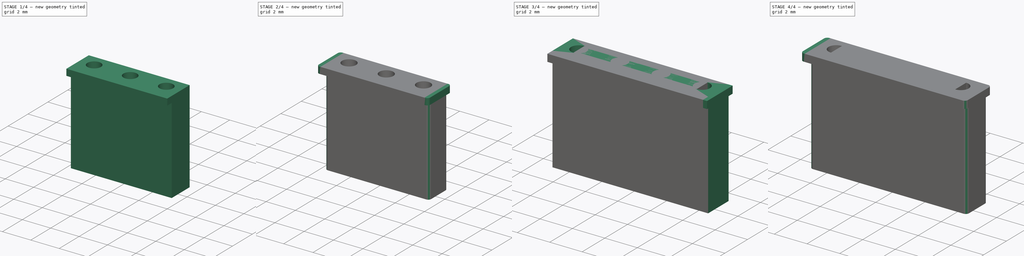
[diagram: build sequence overview — one tinted view per stage of 4, left to right]
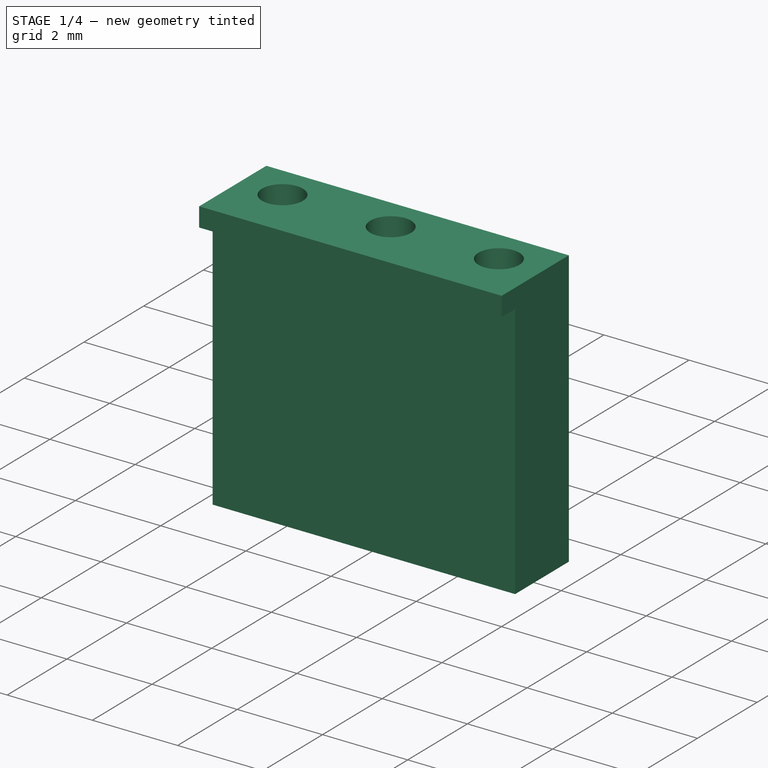
[diagram: stage 1 of 4 — iso view after this stage's code; geometry added in this stage tinted green]
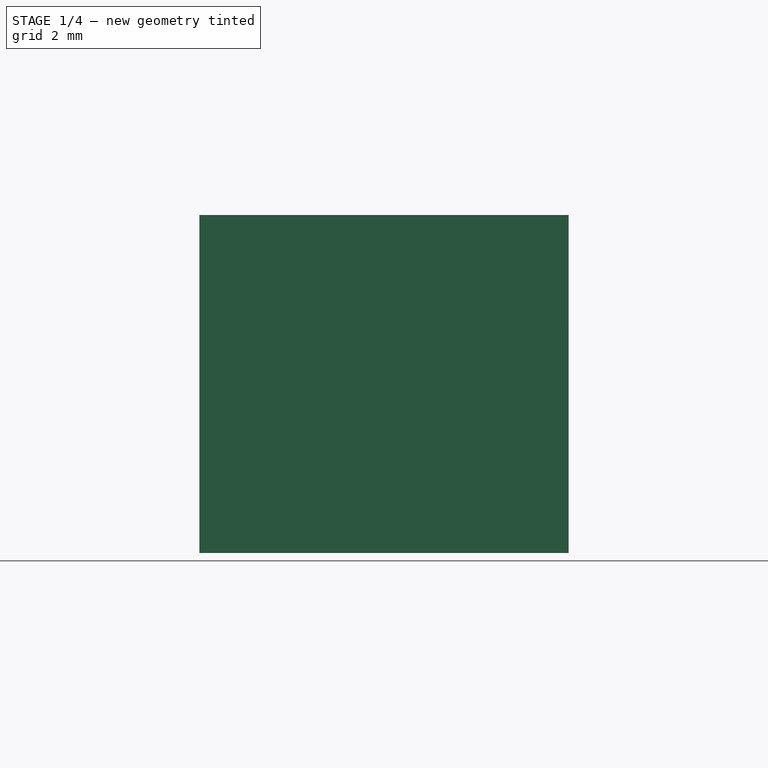
[diagram: stage 1 of 4 — front view after this stage's code; geometry added in this stage tinted green]
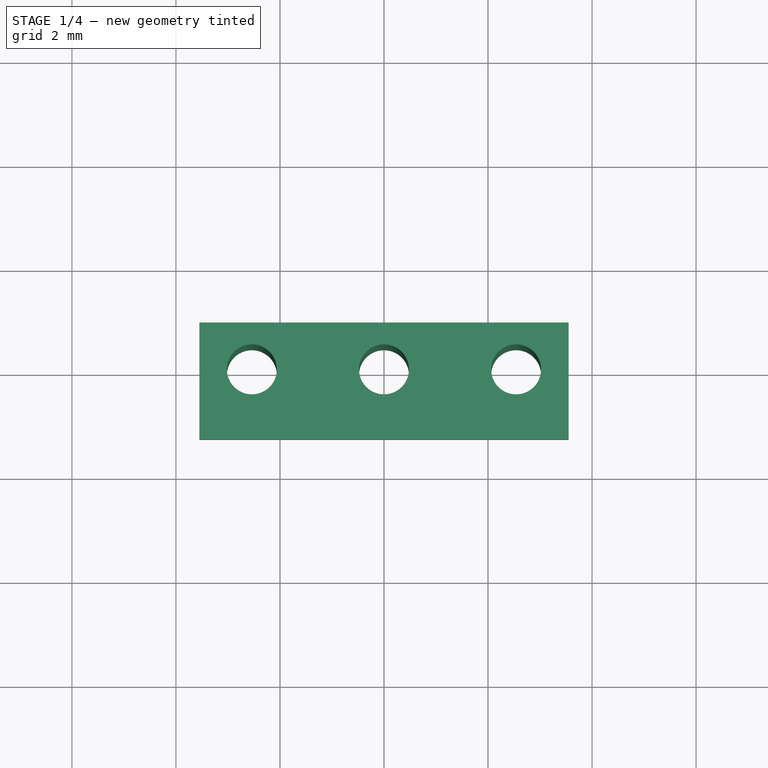
[diagram: stage 1 of 4 — top view after this stage's code; geometry added in this stage tinted green]
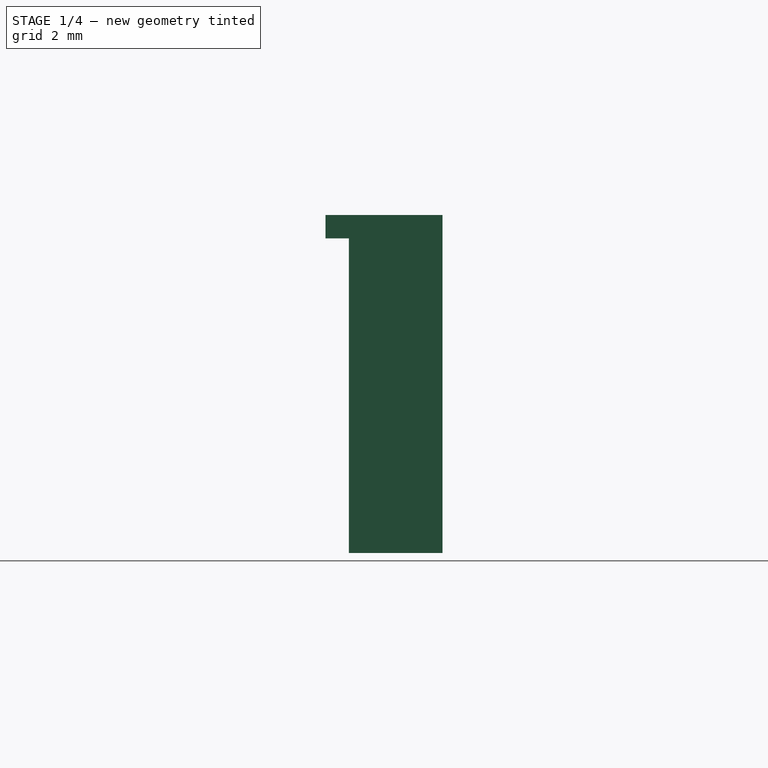
[diagram: stage 1 of 4 — right view after this stage's code; geometry added in this stage tinted green]
FCSTD DOCUMENT  (FreeCAD 1.0R39319 (Git))
Label: MB-C2_CN-CAPs
License: All rights reserved
LicenseURL: https://en.wikipedia.org/wiki/All_rights_reserved
objects: Sketcher::SketchObject×8, PartDesign::Pad×8, PartDesign::Fillet×2, PartDesign::Body×2
note: 48 computed .brp shape members not serialized (recipe doc carries the construction recipe); baked Part::Feature solids carry a one-line shape summary decoded from their .brp

FEATURE [PartDesign::Body] Body  label="CAP2.54pin-1x04_Body"
  AllowCompound = false
  Group = -> [Sketch,Pad,Sketch001,Pad001,Sketch002,Pad002,Sketch003,Pad003,Fillet]
  Origin = -> Origin
  Tip = -> Fillet
FEATURE [Sketcher::SketchObject] Sketch004
  ArcFitTolerance = 1e-06
  AttachmentSupport = -> [XY_Plane001]
  FullyConstrained = true
  MakeInternals = false
  MapMode = 5
  sketch-geometry (8):
    g0: LineSegment StartX=-3.55 StartY=-0.9 StartZ=0 EndX=3.55 EndY=-0.9 EndZ=0
    g1: LineSegment StartX=3.55 StartY=-0.9 StartZ=0 EndX=3.55 EndY=0.9 EndZ=0
    g2: LineSegment StartX=3.55 StartY=0.9 StartZ=0 EndX=-3.55 EndY=0.9 EndZ=0
    g3: LineSegment StartX=-3.55 StartY=0.9 StartZ=0 EndX=-3.55 EndY=-0.9 EndZ=0
    g4: GeomPoint [constr] X=0 Y=0 Z=0
    g5: Circle CenterX=0 CenterY=0 CenterZ=0 NormalX=0 NormalY=0 NormalZ=1 AngleXU=0 Radius=0.48
    g6: Circle CenterX=-2.54 CenterY=0 CenterZ=0 NormalX=0 NormalY=0 NormalZ=1 AngleXU=0 Radius=0.48
    g7: Circle CenterX=2.54 CenterY=0 CenterZ=0 NormalX=0 NormalY=0 NormalZ=1 AngleXU=0 Radius=0.48
  constraints (20):
    c: Coincident(g0,g1)
    c: Coincident(g1,g2)
    c: Coincident(g2,g3)
    c: Coincident(g3,g0)
    c: Horizontal(g0)
    c: Horizontal(g2)
    c: Vertical(g1)
    c: Vertical(g3)
    c: Symmetric(g2,g0,g4)
    c: Distance(g1,g3) = 7.1
    c: Distance(g0,g2) = 1.8
    c: Coincident(g4,g-1)
    c: Diameter(g5) = 0.96
    c: Coincident(g5,g4)
    c: Diameter(g6) = 0.96
    c: PointOnObject(g6,g-1)
    c: Diameter(g7) = 0.96
    c: PointOnObject(g7,g-1)
    c: DistanceX(g4,g7) = 2.54
    c: DistanceX(g6,g4) = 2.54
FEATURE [PartDesign::Pad] Pad004
  Direction = (0,0,1)
  Length = 6.5
  Length2 = 10
  Profile = -> Sketch004
  ReferenceAxis = -> Sketch004 [N_Axis]
  Suppressed = false
  Type = 0
FEATURE [Sketcher::SketchObject] Sketch005
  ArcFitTolerance = 1e-06
  AttachmentSupport = -> [Pad004]
  ExternalGeometry = -> [Pad004]
  FullyConstrained = true
  MakeInternals = false
  MapMode = 5
  Placement = pos=(0,-0.9,0) rot=(1,0,0;1.5708rad)
  sketch-geometry (5):
    g0: GeomPoint [constr] X=3.55 Y=6.05 Z=0
    g1: LineSegment StartX=-3.55 StartY=6.5 StartZ=0 EndX=-3.55 EndY=6.05 EndZ=0
    g2: LineSegment StartX=-3.55 StartY=6.05 StartZ=0 EndX=3.55 EndY=6.05 EndZ=0
    g3: LineSegment StartX=3.55 StartY=6.05 StartZ=0 EndX=3.55 EndY=6.5 EndZ=0
    g4: LineSegment StartX=3.55 StartY=6.5 StartZ=0 EndX=-3.55 EndY=6.5 EndZ=0
  constraints (12):
    c: PointOnObject(g0,g-4)
    c: DistanceY(g0,g-4) = 0.45
    c: Coincident(g1,g2)
    c: Coincident(g2,g3)
    c: Coincident(g3,g4)
    c: Coincident(g4,g1)
    c: Vertical(g1)
    c: Vertical(g3)
    c: Horizontal(g2)
    c: Horizontal(g4)
    c: Coincident(g1,g-3)
    c: Coincident(g2,g0)
FEATURE [PartDesign::Pad] Pad005
  BaseFeature = -> Pad004
  Direction = (0,-1,2e-16)
  Length = 0.45
  Length2 = 10
  Profile = -> Sketch005
  ReferenceAxis = -> Sketch005 [N_Axis]
  Suppressed = false
  Type = 0
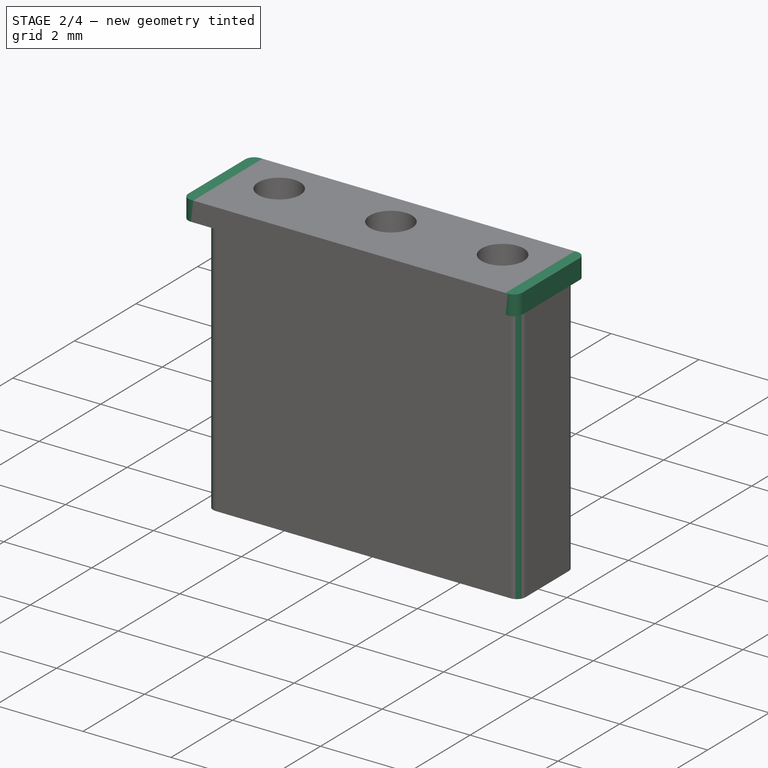
[diagram: stage 2 of 4 — iso view after this stage's code; geometry added in this stage tinted green]
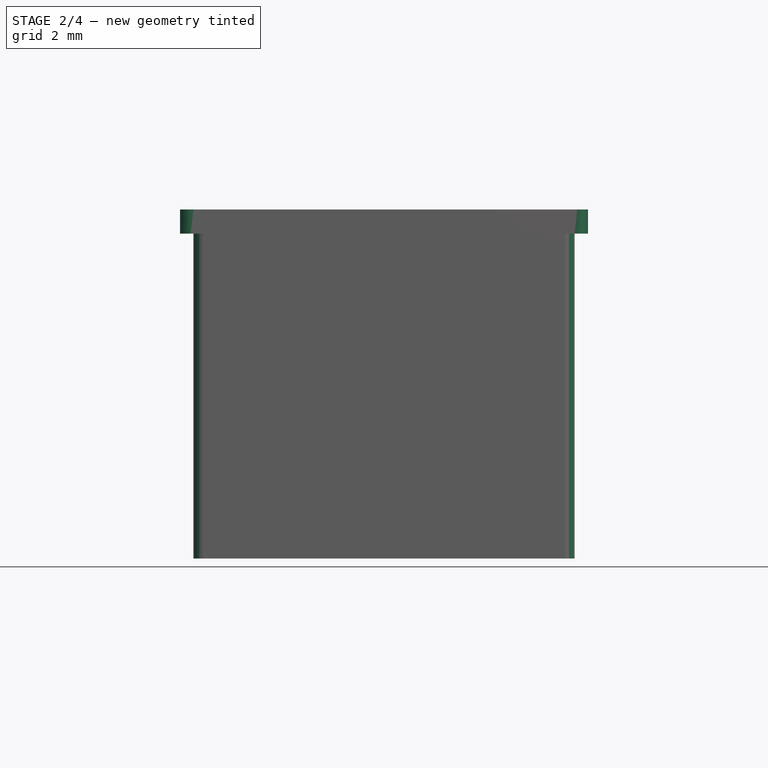
[diagram: stage 2 of 4 — front view after this stage's code; geometry added in this stage tinted green]
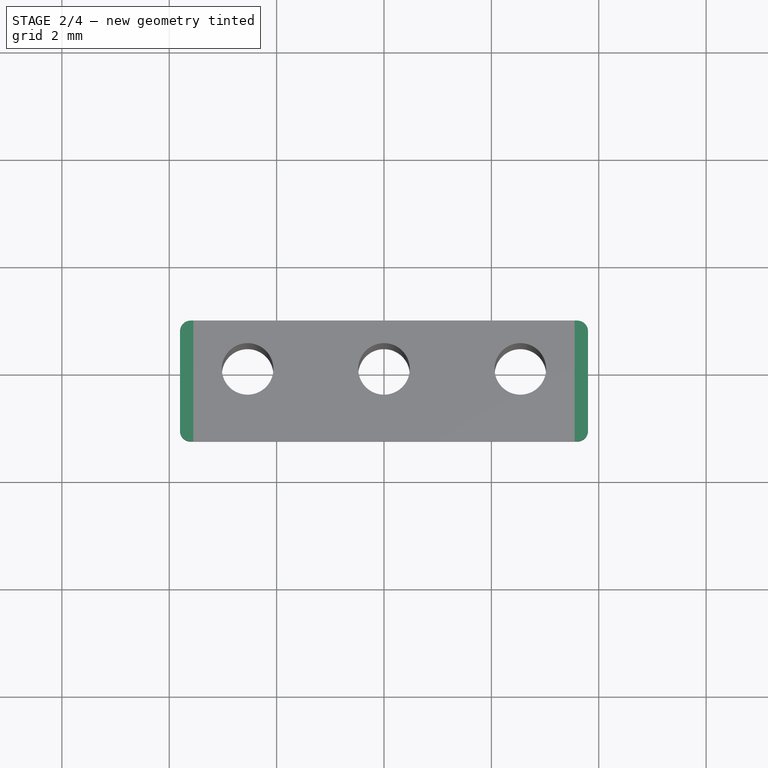
[diagram: stage 2 of 4 — top view after this stage's code; geometry added in this stage tinted green]
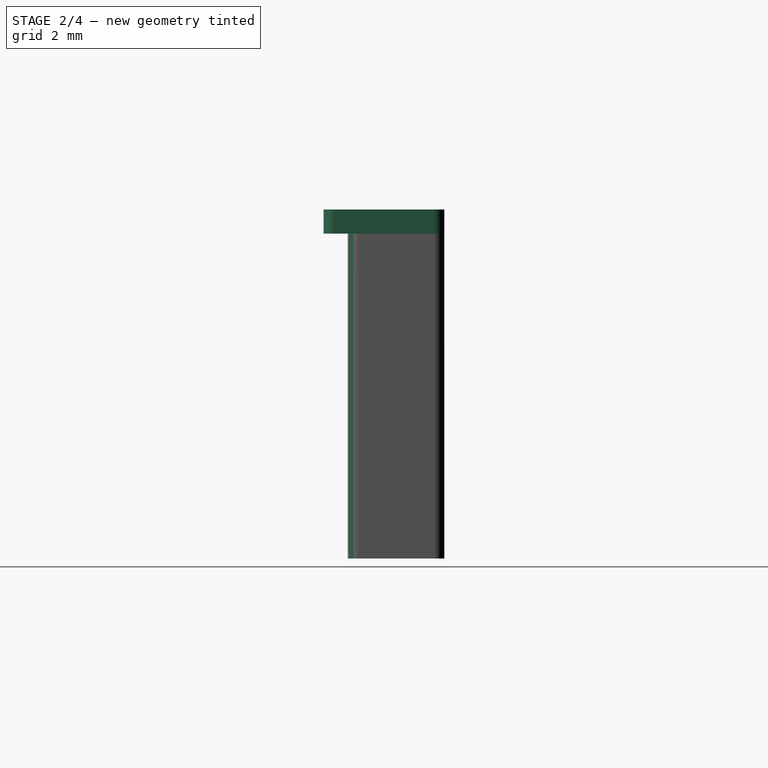
[diagram: stage 2 of 4 — right view after this stage's code; geometry added in this stage tinted green]
FEATURE [Sketcher::SketchObject] Sketch006
  ArcFitTolerance = 1e-06
  AttachmentSupport = -> [Pad005]
  ExternalGeometry = -> [Pad005]
  FullyConstrained = true
  MakeInternals = false
  MapMode = 5
  Placement = pos=(3.55,0,0) rot=(0.57735,0.57735,0.57735;2.0944rad)
  sketch-geometry (4):
    g0: LineSegment StartX=0.9 StartY=6.5 StartZ=0 EndX=-1.35 EndY=6.5 EndZ=0
    g1: LineSegment StartX=-1.35 StartY=6.5 StartZ=0 EndX=-1.35 EndY=6.05 EndZ=0
    g2: LineSegment StartX=-1.35 StartY=6.05 StartZ=0 EndX=0.9 EndY=6.05 EndZ=0
    g3: LineSegment StartX=0.9 StartY=6.05 StartZ=0 EndX=0.9 EndY=6.5 EndZ=0
  constraints (10):
    c: Coincident(g0,g1)
    c: Coincident(g1,g2)
    c: Coincident(g2,g3)
    c: Coincident(g3,g0)
    c: Horizontal(g0)
    c: Horizontal(g2)
    c: Vertical(g1)
    c: Vertical(g3)
    c: Coincident(g0,g-4)
    c: Coincident(g1,g-3)
FEATURE [PartDesign::Pad] Pad006
  BaseFeature = -> Pad005
  Direction = (1,0,0)
  Length = 0.25
  Length2 = 10
  Profile = -> Sketch006
  ReferenceAxis = -> Sketch006 [N_Axis]
  Suppressed = false
  Type = 0
FEATURE [Sketcher::SketchObject] Sketch007
  ArcFitTolerance = 1e-06
  AttachmentSupport = -> [Pad006]
  ExternalGeometry = -> [Pad006]
  FullyConstrained = true
  MakeInternals = false
  MapMode = 5
  Placement = pos=(-3.55,0,0) rot=(0.57735,-0.57735,-0.57735;2.0944rad)
  sketch-geometry (4):
    g0: LineSegment StartX=-0.9 StartY=6.5 StartZ=0 EndX=-0.9 EndY=6.05 EndZ=0
    g1: LineSegment StartX=-0.9 StartY=6.05 StartZ=0 EndX=1.35 EndY=6.05 EndZ=0
    g2: LineSegment StartX=1.35 StartY=6.05 StartZ=0 EndX=1.35 EndY=6.5 EndZ=0
    g3: LineSegment StartX=1.35 StartY=6.5 StartZ=0 EndX=-0.9 EndY=6.5 EndZ=0
  constraints (10):
    c: Coincident(g0,g1)
    c: Coincident(g1,g2)
    c: Coincident(g2,g3)
    c: Coincident(g3,g0)
    c: Vertical(g0)
    c: Vertical(g2)
    c: Horizontal(g1)
    c: Horizontal(g3)
    c: Coincident(g0,g-4)
    c: Coincident(g1,g-3)
FEATURE [PartDesign::Pad] Pad007
  BaseFeature = -> Pad006
  Direction = (-1,0,0)
  Length = 0.25
  Length2 = 10
  Profile = -> Sketch007
  ReferenceAxis = -> Sketch007 [N_Axis]
  Suppressed = false
  Type = 0
FEATURE [PartDesign::Fillet] Fillet001
  Base = -> Pad007 [Edge39,Edge47,Edge17,Edge4,Edge2,Edge44,Edge37,Edge11]
  BaseFeature = -> Pad007
  Radius = 0.2
  SupportTransform = false
  Suppressed = false
  UseAllEdges = false
FEATURE [PartDesign::Body] Body001  label="CAP2.54pin-1x03_Body"
  AllowCompound = false
  Group = -> [Sketch004,Pad004,Sketch005,Pad005,Sketch006,Pad006,Sketch007,Pad007,Fillet001]
  Origin = -> Origin001
  Placement = pos=(0,2.54,0) rot=(0,0,1;0rad)
  Tip = -> Fillet001
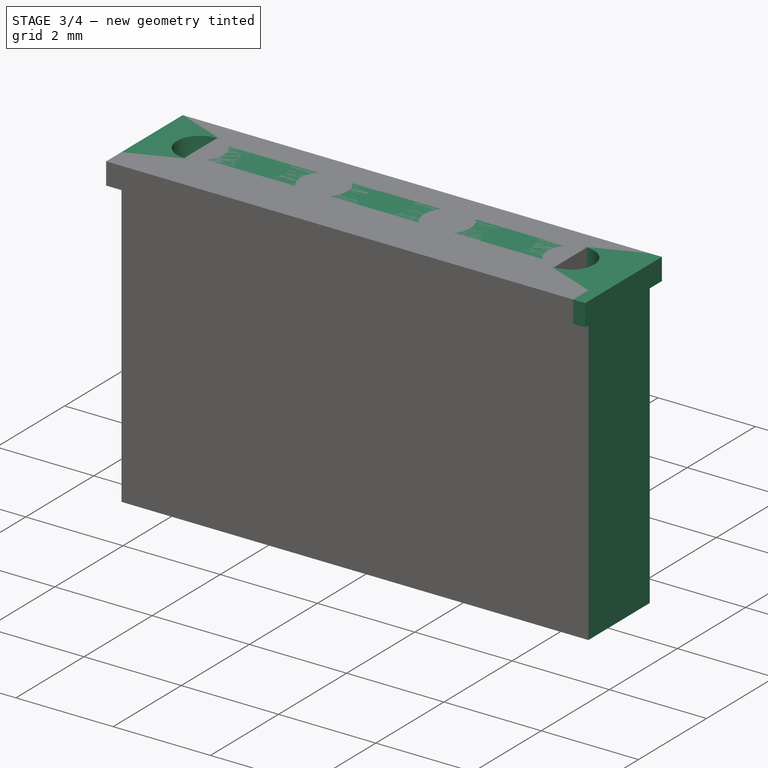
[diagram: stage 3 of 4 — iso view after this stage's code; geometry added in this stage tinted green]
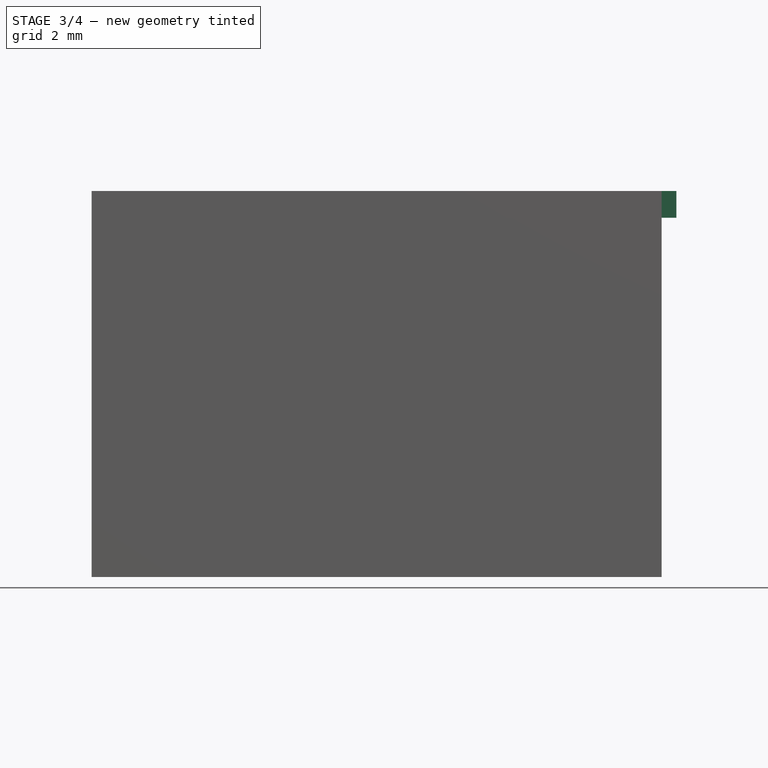
[diagram: stage 3 of 4 — front view after this stage's code; geometry added in this stage tinted green]
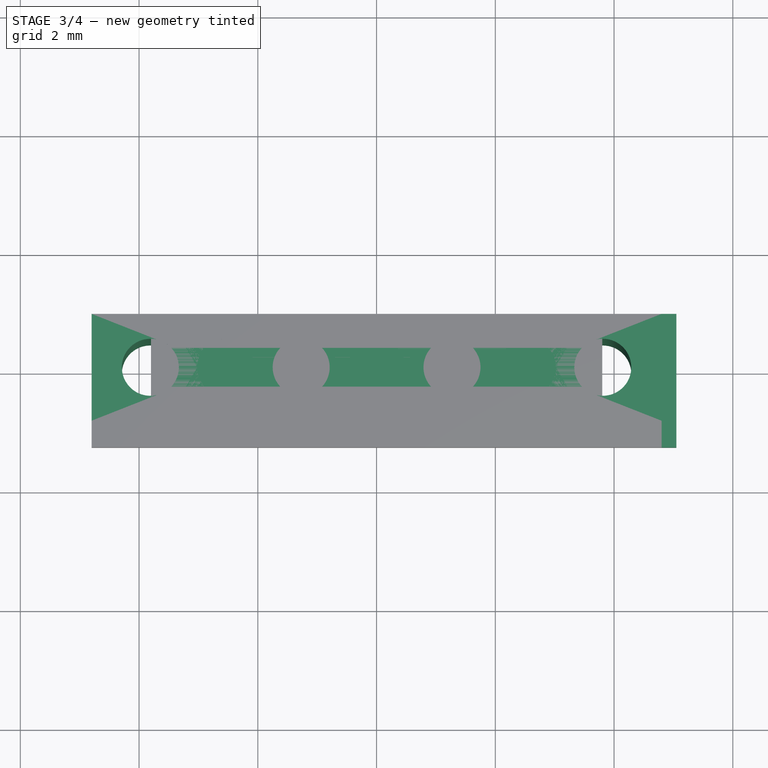
[diagram: stage 3 of 4 — top view after this stage's code; geometry added in this stage tinted green]
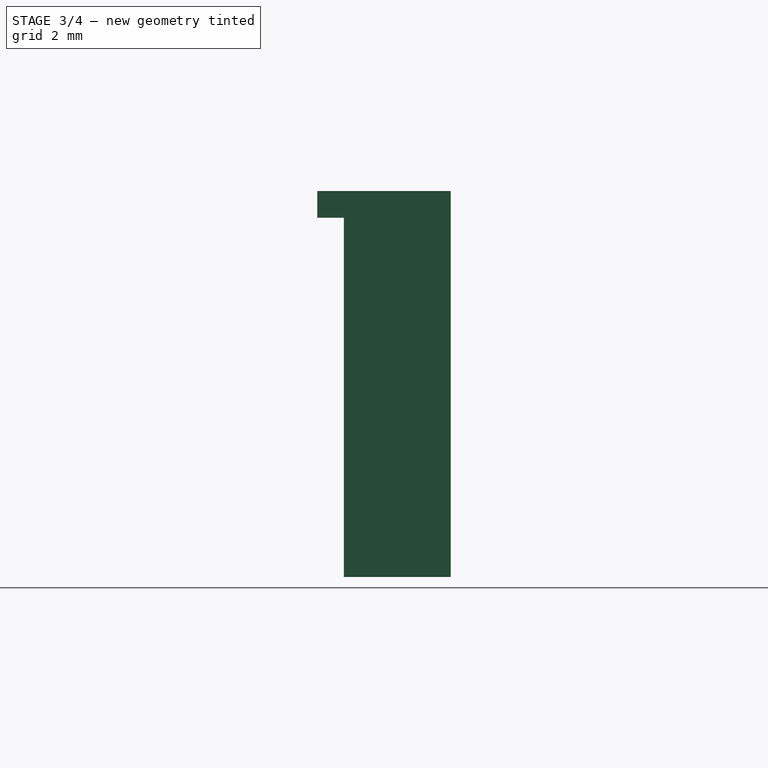
[diagram: stage 3 of 4 — right view after this stage's code; geometry added in this stage tinted green]
FEATURE [Sketcher::SketchObject] Sketch
  ArcFitTolerance = 1e-06
  AttachmentSupport = -> [XY_Plane]
  FullyConstrained = true
  MakeInternals = false
  MapMode = 5
  sketch-geometry (13):
    g0: LineSegment StartX=-4.8 StartY=-0.9 StartZ=0 EndX=4.8 EndY=-0.9 EndZ=0
    g1: LineSegment StartX=4.8 StartY=-0.9 StartZ=0 EndX=4.8 EndY=0.9 EndZ=0
    g2: LineSegment StartX=4.8 StartY=0.9 StartZ=0 EndX=-4.8 EndY=0.9 EndZ=0
    g3: LineSegment StartX=-4.8 StartY=0.9 StartZ=0 EndX=-4.8 EndY=-0.9 EndZ=0
    g4: GeomPoint [constr] X=0 Y=0 Z=0
    g5: GeomPoint [constr] X=-3.81 Y=0 Z=0
    g6: GeomPoint [constr] X=-1.27 Y=0 Z=0
    g7: GeomPoint [constr] X=1.27 Y=0 Z=0
    g8: GeomPoint [constr] X=3.81 Y=0 Z=0
    g9: Circle CenterX=-3.81 CenterY=0 CenterZ=0 NormalX=0 NormalY=0 NormalZ=1 AngleXU=0 Radius=0.48
    g10: Circle CenterX=-1.27 CenterY=0 CenterZ=0 NormalX=0 NormalY=0 NormalZ=1 AngleXU=0 Radius=0.48
    g11: Circle CenterX=1.27 CenterY=0 CenterZ=0 NormalX=0 NormalY=0 NormalZ=1 AngleXU=0 Radius=0.48
    g12: Circle CenterX=3.81 CenterY=0 CenterZ=0 NormalX=0 NormalY=0 NormalZ=1 AngleXU=0 Radius=0.48
  constraints (28):
    c: Coincident(g0,g1)
    c: Coincident(g1,g2)
    c: Coincident(g2,g3)
    c: Coincident(g3,g0)
    c: Horizontal(g0)
    c: Horizontal(g2)
    c: Vertical(g1)
    c: Vertical(g3)
    c: Symmetric(g2,g0,g4)
    c: Distance(g1,g3) = 9.6
    c: Distance(g0,g2) = 1.8
    c: Coincident(g4,g-1)
    c: PointOnObject(g5,g-1)
    c: PointOnObject(g6,g-1)
    c: PointOnObject(g7,g-1)
    c: PointOnObject(g8,g-1)
    c: DistanceX(g6,g4) = 1.27
    c: DistanceX(g4,g7) = 1.27
    c: DistanceX(g5,g6) = 2.54
    c: DistanceX(g7,g8) = 2.54
    c: Diameter(g9) = 0.96
    c: Coincident(g9,g5)
    c: Diameter(g10) = 0.96
    c: Coincident(g10,g6)
    c: Diameter(g11) = 0.96
    c: Coincident(g11,g7)
    c: Diameter(g12) = 0.96
    c: Coincident(g12,g8)
FEATURE [PartDesign::Pad] Pad
  Direction = (0,0,1)
  Length = 6.5
  Length2 = 10
  Profile = -> Sketch
  ReferenceAxis = -> Sketch [N_Axis]
  Suppressed = false
  Type = 0
FEATURE [Sketcher::SketchObject] Sketch001
  ArcFitTolerance = 1e-06
  AttachmentSupport = -> [Pad]
  ExternalGeometry = -> [Pad]
  FullyConstrained = true
  MakeInternals = false
  MapMode = 5
  Placement = pos=(0,-0.9,0) rot=(1,0,0;1.5708rad)
  sketch-geometry (5):
    g0: GeomPoint [constr] X=4.8 Y=6.05 Z=0
    g1: LineSegment StartX=-4.8 StartY=6.5 StartZ=0 EndX=-4.8 EndY=6.05 EndZ=0
    g2: LineSegment StartX=-4.8 StartY=6.05 StartZ=0 EndX=4.8 EndY=6.05 EndZ=0
    g3: LineSegment StartX=4.8 StartY=6.05 StartZ=0 EndX=4.8 EndY=6.5 EndZ=0
    g4: LineSegment StartX=4.8 StartY=6.5 StartZ=0 EndX=-4.8 EndY=6.5 EndZ=0
  constraints (12):
    c: PointOnObject(g0,g-4)
    c: DistanceY(g0,g-4) = 0.45
    c: Coincident(g1,g2)
    c: Coincident(g2,g3)
    c: Coincident(g3,g4)
    c: Coincident(g4,g1)
    c: Vertical(g1)
    c: Vertical(g3)
    c: Horizontal(g2)
    c: Horizontal(g4)
    c: Coincident(g1,g-3)
    c: Coincident(g2,g0)
FEATURE [PartDesign::Pad] Pad001
  BaseFeature = -> Pad
  Direction = (0,-1,2e-16)
  Length = 0.45
  Length2 = 10
  Profile = -> Sketch001
  ReferenceAxis = -> Sketch001 [N_Axis]
  Suppressed = false
  Type = 0
FEATURE [Sketcher::SketchObject] Sketch002
  ArcFitTolerance = 1e-06
  AttachmentSupport = -> [Pad001]
  ExternalGeometry = -> [Pad001]
  FullyConstrained = true
  MakeInternals = false
  MapMode = 5
  Placement = pos=(4.8,0,0) rot=(0.57735,0.57735,0.57735;2.0944rad)
  sketch-geometry (4):
    g0: LineSegment StartX=0.9 StartY=6.5 StartZ=0 EndX=-1.35 EndY=6.5 EndZ=0
    g1: LineSegment StartX=-1.35 StartY=6.5 StartZ=0 EndX=-1.35 EndY=6.05 EndZ=0
    g2: LineSegment StartX=-1.35 StartY=6.05 StartZ=0 EndX=0.9 EndY=6.05 EndZ=0
    g3: LineSegment StartX=0.9 StartY=6.05 StartZ=0 EndX=0.9 EndY=6.5 EndZ=0
  constraints (10):
    c: Coincident(g0,g1)
    c: Coincident(g1,g2)
    c: Coincident(g2,g3)
    c: Coincident(g3,g0)
    c: Horizontal(g0)
    c: Horizontal(g2)
    c: Vertical(g1)
    c: Vertical(g3)
    c: Coincident(g0,g-3)
    c: Coincident(g1,g-4)
FEATURE [PartDesign::Pad] Pad002
  BaseFeature = -> Pad001
  Direction = (1,0,0)
  Length = 0.25
  Length2 = 10
  Profile = -> Sketch002
  ReferenceAxis = -> Sketch002 [N_Axis]
  Suppressed = false
  Type = 0
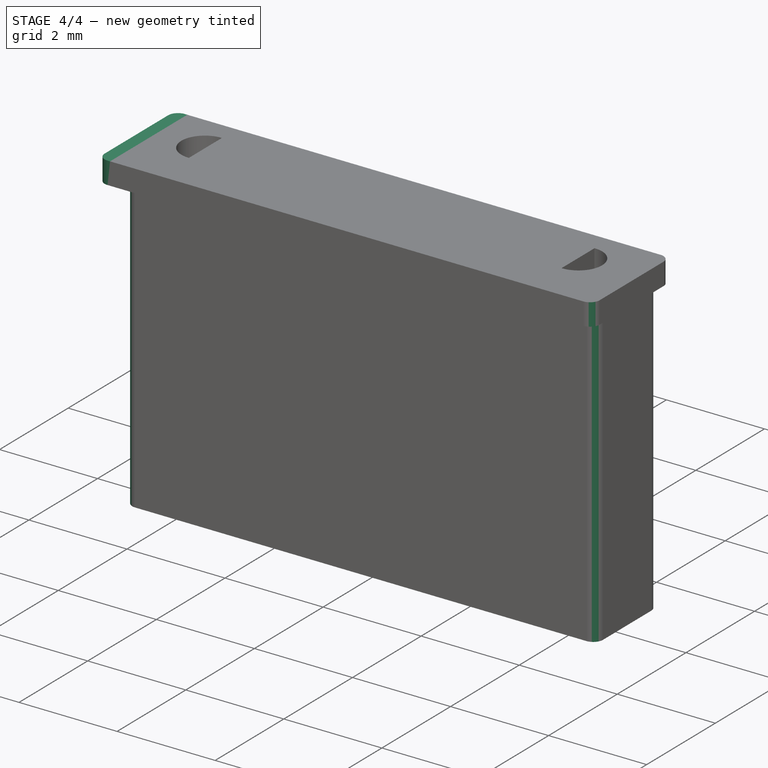
[diagram: stage 4 of 4 — iso view after this stage's code; geometry added in this stage tinted green]
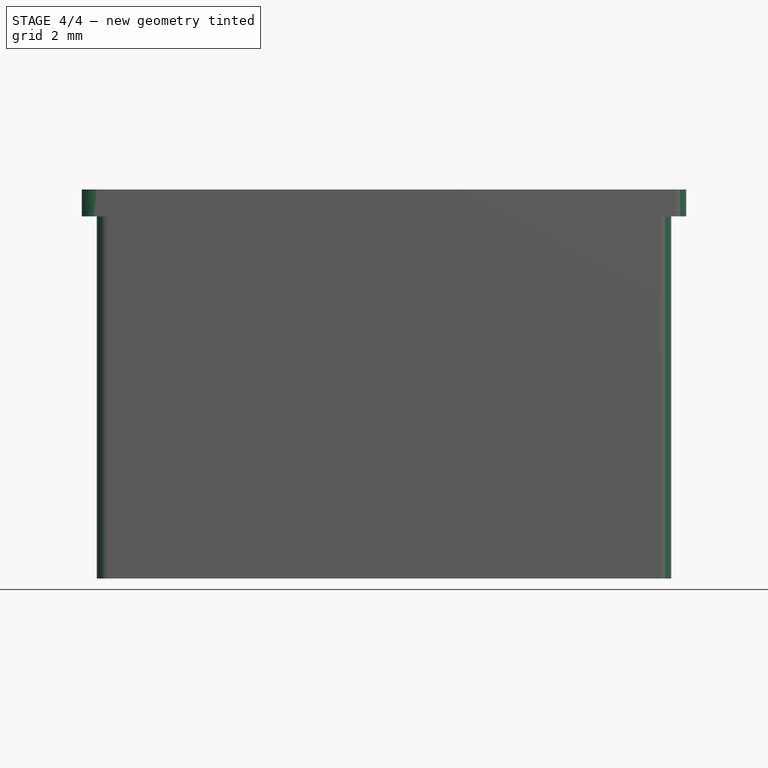
[diagram: stage 4 of 4 — front view after this stage's code; geometry added in this stage tinted green]
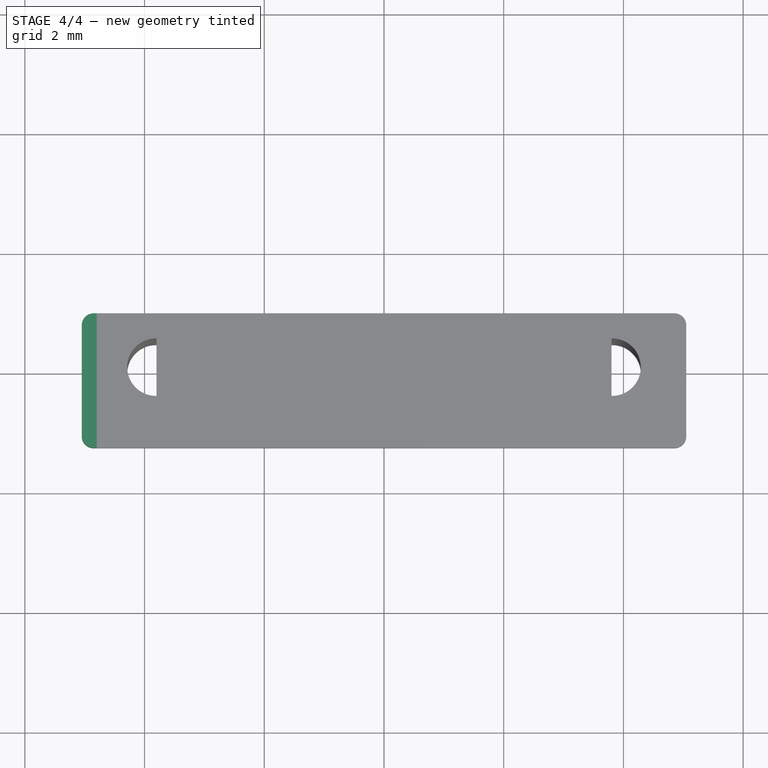
[diagram: stage 4 of 4 — top view after this stage's code; geometry added in this stage tinted green]
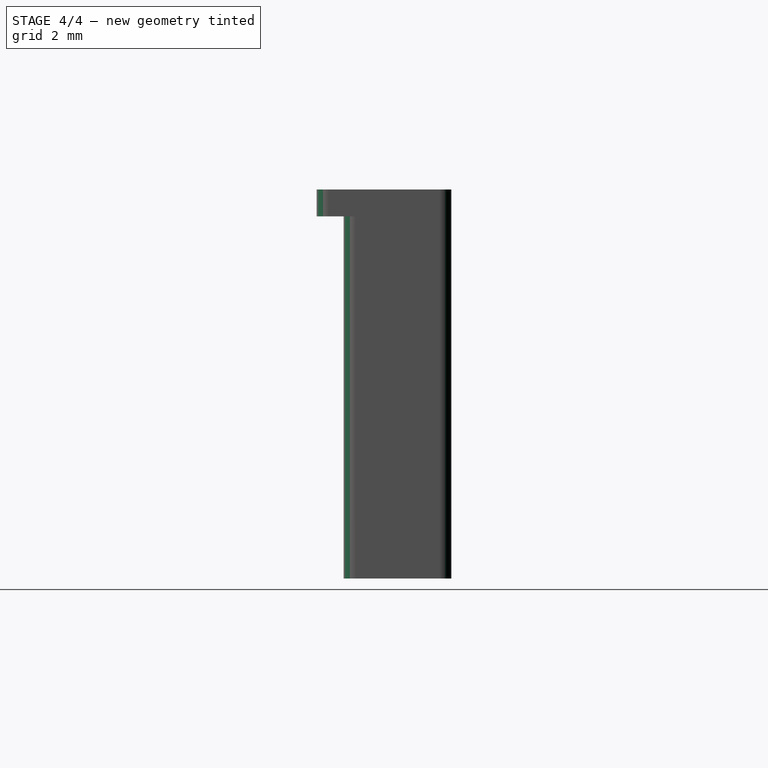
[diagram: stage 4 of 4 — right view after this stage's code; geometry added in this stage tinted green]
FEATURE [Sketcher::SketchObject] Sketch003
  ArcFitTolerance = 1e-06
  AttachmentSupport = -> [Pad002]
  ExternalGeometry = -> [Pad002]
  FullyConstrained = true
  MakeInternals = false
  MapMode = 5
  Placement = pos=(-4.8,0,0) rot=(0.57735,-0.57735,-0.57735;2.0944rad)
  sketch-geometry (4):
    g0: LineSegment StartX=-0.9 StartY=6.5 StartZ=0 EndX=-0.9 EndY=6.05 EndZ=0
    g1: LineSegment StartX=-0.9 StartY=6.05 StartZ=0 EndX=1.35 EndY=6.05 EndZ=0
    g2: LineSegment StartX=1.35 StartY=6.05 StartZ=0 EndX=1.35 EndY=6.5 EndZ=0
    g3: LineSegment StartX=1.35 StartY=6.5 StartZ=0 EndX=-0.9 EndY=6.5 EndZ=0
  constraints (10):
    c: Coincident(g0,g1)
    c: Coincident(g1,g2)
    c: Coincident(g2,g3)
    c: Coincident(g3,g0)
    c: Vertical(g0)
    c: Vertical(g2)
    c: Horizontal(g1)
    c: Horizontal(g3)
    c: Coincident(g0,g-4)
    c: Coincident(g1,g-3)
FEATURE [PartDesign::Pad] Pad003
  BaseFeature = -> Pad002
  Direction = (-1,0,0)
  Length = 0.25
  Length2 = 10
  Profile = -> Sketch003
  ReferenceAxis = -> Sketch003 [N_Axis]
  Suppressed = false
  Type = 0
FEATURE [PartDesign::Fillet] Fillet
  Base = -> Pad003 [Edge4,Edge18,Edge2,Edge12,Edge42,Edge50,Edge40,Edge47]
  BaseFeature = -> Pad003
  Radius = 0.2
  SupportTransform = false
  Suppressed = false
  UseAllEdges = false
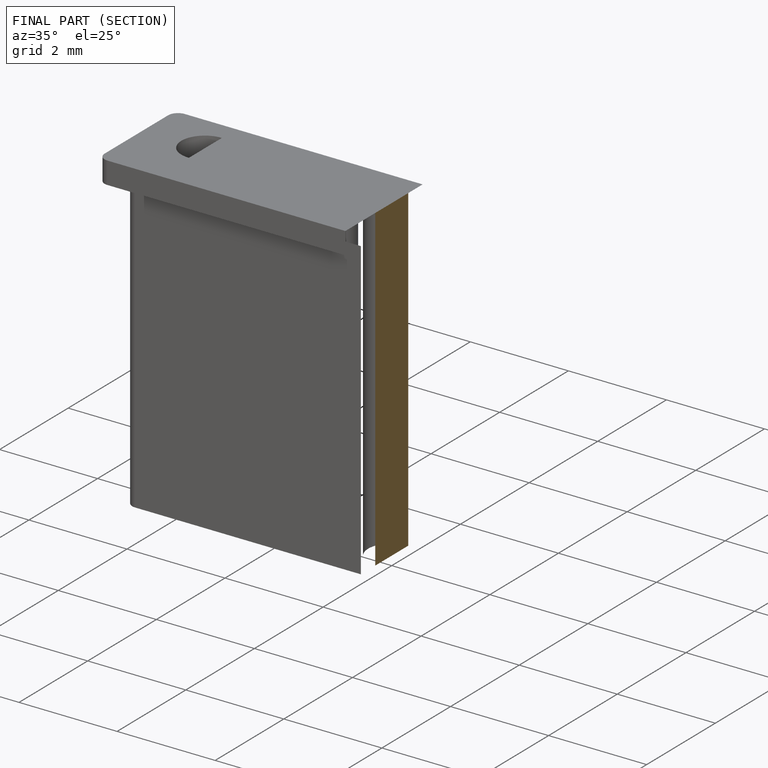
[diagram: finished part — half-section view (interior)]
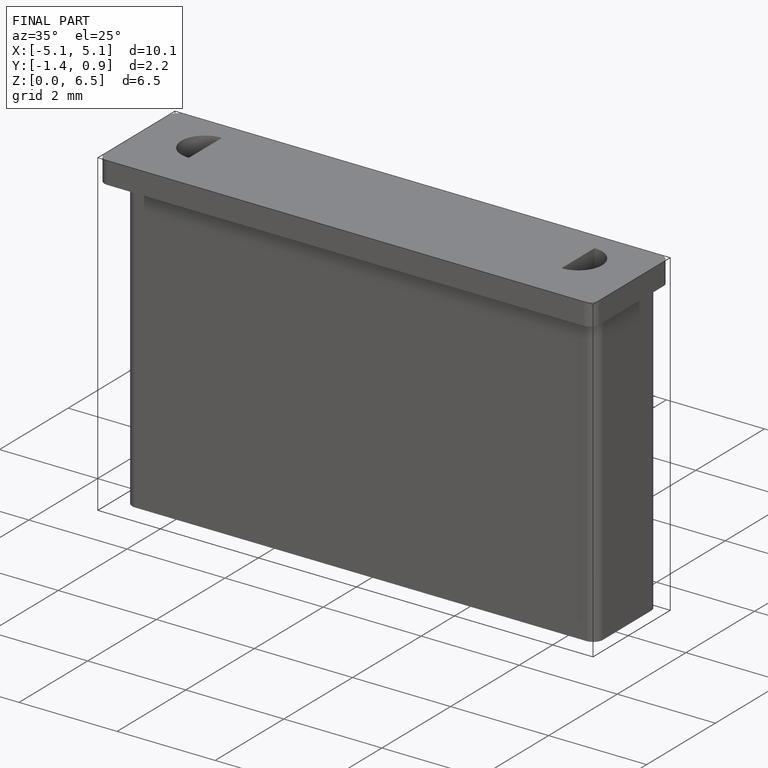
[diagram: finished part — iso view with bounding-box wireframe]
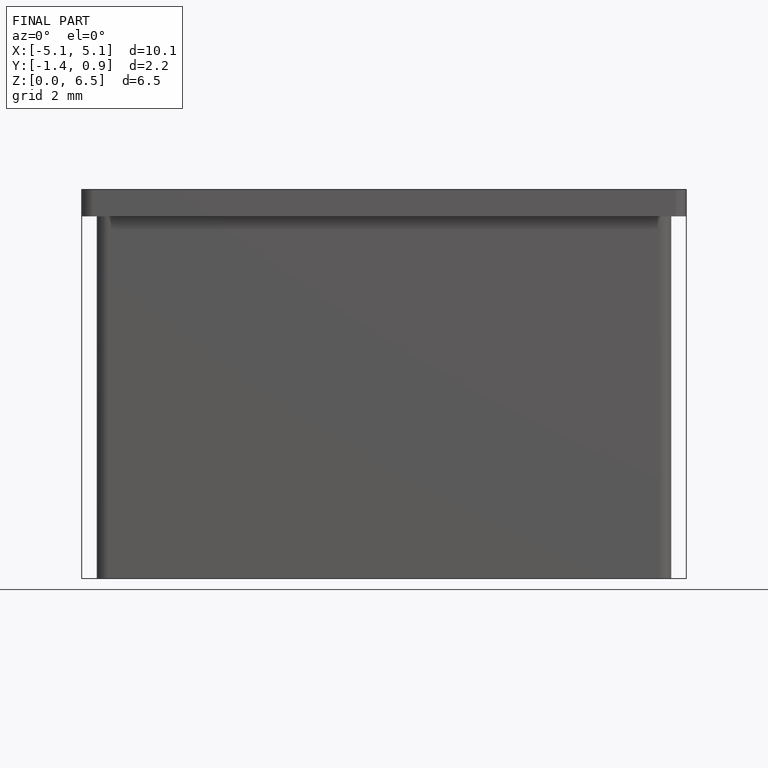
[diagram: finished part — front view with bounding-box wireframe]
